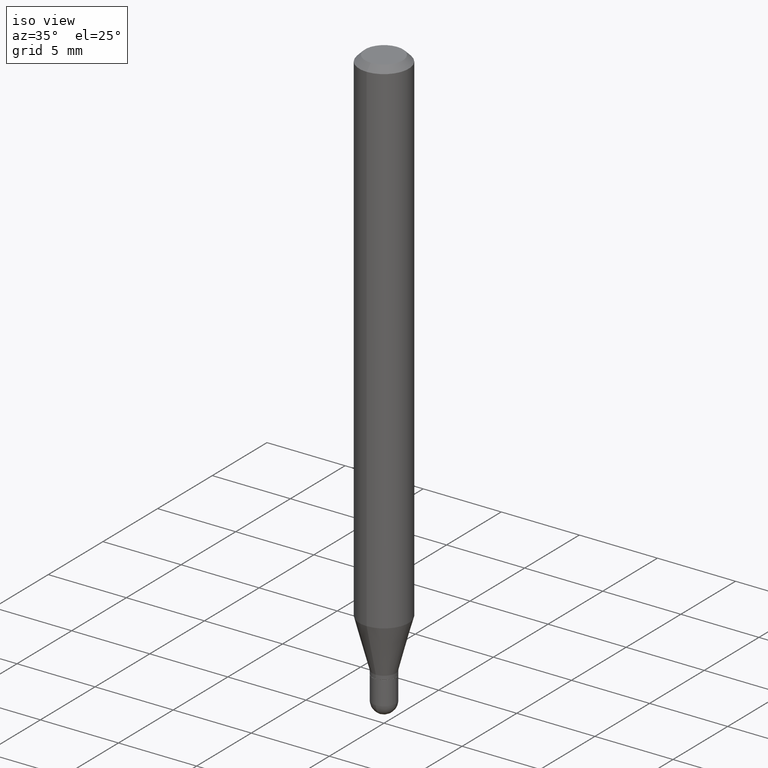
[diagram: clean part render]
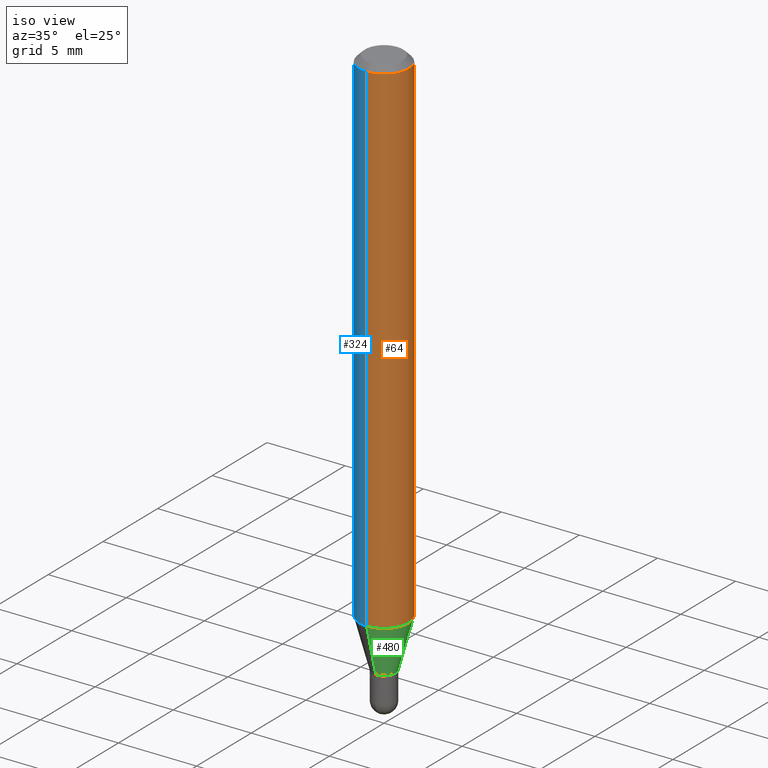
[diagram: same view with three faces highlighted in distinct colors, each labeled with its STEP entity id]
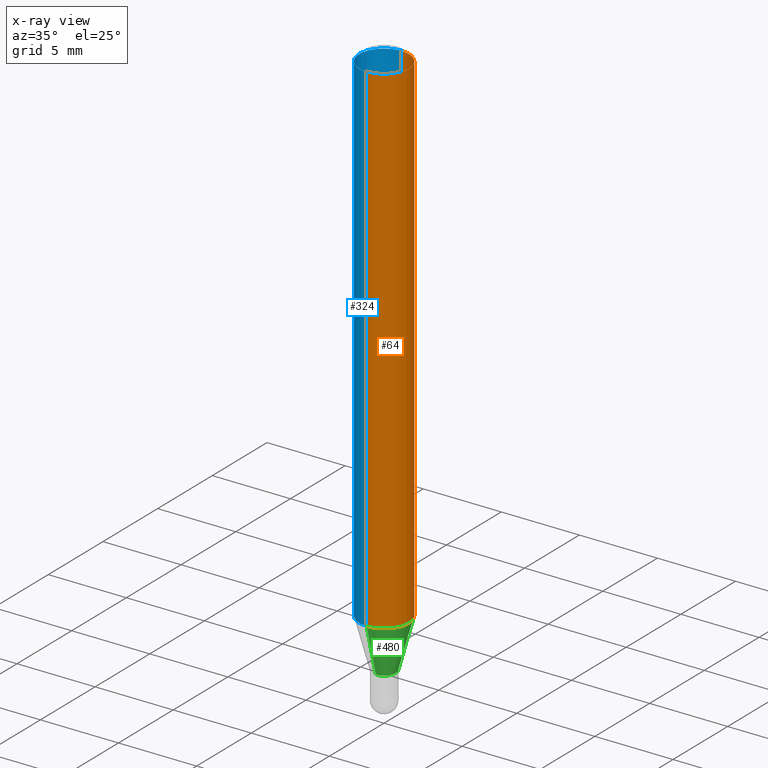
[diagram: x-ray of the same camera — body ghosted, the three highlighted faces saturated]
A machine part, iso view with three faces highlighted in distinct colors.
The next image is the same camera in x-ray (body ghosted, the three faces saturated) — at least one of them is partly hidden behind the body in this view.
Their STEP definitions:

[orange] entity #64 — the highlighted cylindrical surface (edge-blend (fillet) strip) has radius 1.5875 mm, axis along (-0, 0, 1).
#11 = LINE ( 'NONE', #56, #433 ) ;
#13 = ORIENTED_EDGE ( 'NONE', *, *, #98, .T. ) ;
#18 = AXIS2_PLACEMENT_3D ( 'NONE', #431, #319, #236 ) ;
#43 = DIRECTION ( 'NONE',  ( -2.445481567641216773E-29, 3.491463063711701769E-15, 1.000000000000000000 ) ) ;
#48 = CARTESIAN_POINT ( 'NONE',  ( 4.440892098500940720E-16, 0.06249999999999995143, -0.01500000000000054588 ) ) ;
#56 = CARTESIAN_POINT ( 'NONE',  ( -4.364351673553916201E-16, -0.06250000000000000000, 2.182164414819813606E-16 ) ) ;
#64 = ADVANCED_FACE ( 'NONE', ( #157 ), #435, .T. ) ;
#77 = DIRECTION ( 'NONE',  ( -6.982962677686265922E-15, -1.000000000000000000, 4.370956789862821150E-15 ) ) ;
#98 = EDGE_CURVE ( 'NONE', #479, #471, #161, .T. ) ;
#103 = DIRECTION ( 'NONE',  ( -2.445481567641216773E-29, 3.491463063711701769E-15, 1.000000000000000000 ) ) ;
#110 = ORIENTED_EDGE ( 'NONE', *, *, #285, .T. ) ;
#123 = CARTESIAN_POINT ( 'NONE',  ( -4.364351673553605587E-16, -0.06250000000000449640, -1.277842323350228293 ) ) ;
#137 = DIRECTION ( 'NONE',  ( -6.982962677686265922E-15, -1.000000000000000000, 3.483106191921935554E-15 ) ) ;
#144 = CARTESIAN_POINT ( 'NONE',  ( -4.364351673553912750E-16, -0.06250000000000005551, -0.01500000000000011047 ) ) ;
#146 = CIRCLE ( 'NONE', #418, 0.06250000000000000000 ) ;
#157 = FACE_OUTER_BOUND ( 'NONE', #185, .T. ) ;
#161 = CIRCLE ( 'NONE', #371, 0.06250000000000000000 ) ;
#169 = VECTOR ( 'NONE', #103, 39.37007874015748143 ) ;
#178 = EDGE_CURVE ( 'NONE', #453, #502, #146, .T. ) ;
#185 = EDGE_LOOP ( 'NONE', ( #13, #110, #341, #421 ) ) ;
#200 = EDGE_CURVE ( 'NONE', #479, #453, #11, .T. ) ;
#214 = CARTESIAN_POINT ( 'NONE',  ( 3.668222351461905752E-31, -5.237194595567666989E-17, -0.01500000000000032904 ) ) ;
#236 = DIRECTION ( 'NONE',  ( -6.982962677686265922E-15, -1.000000000000000000, 3.491463063711701769E-15 ) ) ;
#285 = EDGE_CURVE ( 'NONE', #471, #502, #447, .T. ) ;
#319 = DIRECTION ( 'NONE',  ( -2.445481567641216773E-29, 3.491463063711701769E-15, 1.000000000000000000 ) ) ;
#341 = ORIENTED_EDGE ( 'NONE', *, *, #178, .F. ) ;
#371 = AXIS2_PLACEMENT_3D ( 'NONE', #510, #43, #77 ) ;
#404 = CARTESIAN_POINT ( 'NONE',  ( 4.440892098500935790E-16, 0.06249999999999550360, -1.277842323350228737 ) ) ;
#418 = AXIS2_PLACEMENT_3D ( 'NONE', #214, #492, #137 ) ;
#420 = DIRECTION ( 'NONE',  ( -2.445481567641216773E-29, 3.491463063711701769E-15, 1.000000000000000000 ) ) ;
#421 = ORIENTED_EDGE ( 'NONE', *, *, #200, .F. ) ;
#431 = CARTESIAN_POINT ( 'NONE',  ( 0.000000000000000000, 0.000000000000000000, 0.000000000000000000 ) ) ;
#433 = VECTOR ( 'NONE', #420, 39.37007874015748143 ) ;
#435 = CYLINDRICAL_SURFACE ( 'NONE', #18, 0.06250000000000000000 ) ;
#447 = LINE ( 'NONE', #495, #169 ) ;
#453 = VERTEX_POINT ( 'NONE', #144 ) ;
#471 = VERTEX_POINT ( 'NONE', #404 ) ;
#479 = VERTEX_POINT ( 'NONE', #123 ) ;
#492 = DIRECTION ( 'NONE',  ( -2.445481567641216773E-29, 3.491463063711701769E-15, 1.000000000000000000 ) ) ;
#495 = CARTESIAN_POINT ( 'NONE',  ( 4.440892098500625669E-16, 0.06250000000000000000, -2.182164414819813606E-16 ) ) ;
#502 = VERTEX_POINT ( 'NONE', #48 ) ;
#510 = CARTESIAN_POINT ( 'NONE',  ( 3.124939848104811394E-29, -4.461539273224868558E-15, -1.277842323350228515 ) ) ;

[blue] entity #324 — the highlighted cylindrical surface (edge-blend (fillet) strip) has radius 1.5875 mm, axis along (-0, 0, 1).
#11 = LINE ( 'NONE', #56, #433 ) ;
#37 = FACE_OUTER_BOUND ( 'NONE', #491, .T. ) ;
#41 = CARTESIAN_POINT ( 'NONE',  ( 3.668222351461905752E-31, -5.237194595567666989E-17, -0.01500000000000032904 ) ) ;
#44 = CIRCLE ( 'NONE', #440, 0.06250000000000000000 ) ;
#48 = CARTESIAN_POINT ( 'NONE',  ( 4.440892098500940720E-16, 0.06249999999999995143, -0.01500000000000054588 ) ) ;
#56 = CARTESIAN_POINT ( 'NONE',  ( -4.364351673553916201E-16, -0.06250000000000000000, 2.182164414819813606E-16 ) ) ;
#71 = EDGE_CURVE ( 'NONE', #502, #453, #339, .T. ) ;
#72 = CYLINDRICAL_SURFACE ( 'NONE', #99, 0.06250000000000000000 ) ;
#99 = AXIS2_PLACEMENT_3D ( 'NONE', #189, #460, #228 ) ;
#103 = DIRECTION ( 'NONE',  ( -2.445481567641216773E-29, 3.491463063711701769E-15, 1.000000000000000000 ) ) ;
#123 = CARTESIAN_POINT ( 'NONE',  ( -4.364351673553605587E-16, -0.06250000000000449640, -1.277842323350228293 ) ) ;
#144 = CARTESIAN_POINT ( 'NONE',  ( -4.364351673553912750E-16, -0.06250000000000005551, -0.01500000000000011047 ) ) ;
#169 = VECTOR ( 'NONE', #103, 39.37007874015748143 ) ;
#189 = CARTESIAN_POINT ( 'NONE',  ( 0.000000000000000000, 0.000000000000000000, 0.000000000000000000 ) ) ;
#200 = EDGE_CURVE ( 'NONE', #479, #453, #11, .T. ) ;
#228 = DIRECTION ( 'NONE',  ( -6.982962677686265922E-15, -1.000000000000000000, 3.491463063711701769E-15 ) ) ;
#277 = AXIS2_PLACEMENT_3D ( 'NONE', #41, #317, #464 ) ;
#285 = EDGE_CURVE ( 'NONE', #471, #502, #447, .T. ) ;
#298 = EDGE_CURVE ( 'NONE', #471, #479, #44, .T. ) ;
#300 = DIRECTION ( 'NONE',  ( -2.445481567641216773E-29, 3.491463063711701769E-15, 1.000000000000000000 ) ) ;
#302 = ORIENTED_EDGE ( 'NONE', *, *, #285, .F. ) ;
#317 = DIRECTION ( 'NONE',  ( -2.445481567641216773E-29, 3.491463063711701769E-15, 1.000000000000000000 ) ) ;
#324 = ADVANCED_FACE ( 'NONE', ( #37 ), #72, .T. ) ;
#336 = ORIENTED_EDGE ( 'NONE', *, *, #298, .T. ) ;
#339 = CIRCLE ( 'NONE', #277, 0.06250000000000000000 ) ;
#344 = ORIENTED_EDGE ( 'NONE', *, *, #71, .F. ) ;
#396 = CARTESIAN_POINT ( 'NONE',  ( 3.124939848104811394E-29, -4.461539273224868558E-15, -1.277842323350228515 ) ) ;
#404 = CARTESIAN_POINT ( 'NONE',  ( 4.440892098500935790E-16, 0.06249999999999550360, -1.277842323350228737 ) ) ;
#420 = DIRECTION ( 'NONE',  ( -2.445481567641216773E-29, 3.491463063711701769E-15, 1.000000000000000000 ) ) ;
#433 = VECTOR ( 'NONE', #420, 39.37007874015748143 ) ;
#440 = AXIS2_PLACEMENT_3D ( 'NONE', #396, #300, #463 ) ;
#447 = LINE ( 'NONE', #495, #169 ) ;
#453 = VERTEX_POINT ( 'NONE', #144 ) ;
#460 = DIRECTION ( 'NONE',  ( -2.445481567641216773E-29, 3.491463063711701769E-15, 1.000000000000000000 ) ) ;
#461 = ORIENTED_EDGE ( 'NONE', *, *, #200, .T. ) ;
#463 = DIRECTION ( 'NONE',  ( -6.982962677686265922E-15, -1.000000000000000000, 4.370956789862821150E-15 ) ) ;
#464 = DIRECTION ( 'NONE',  ( -6.982962677686265922E-15, -1.000000000000000000, 3.483106191921935554E-15 ) ) ;
#471 = VERTEX_POINT ( 'NONE', #404 ) ;
#479 = VERTEX_POINT ( 'NONE', #123 ) ;
#491 = EDGE_LOOP ( 'NONE', ( #302, #336, #461, #344 ) ) ;
#495 = CARTESIAN_POINT ( 'NONE',  ( 4.440892098500625669E-16, 0.06250000000000000000, -2.182164414819813606E-16 ) ) ;
#502 = VERTEX_POINT ( 'NONE', #48 ) ;

[green] entity #480 — the highlighted conical surface has half-angle 15 deg.
#10 = DIRECTION ( 'NONE',  ( -2.445481567641216773E-29, 3.491463063711701769E-15, 1.000000000000000000 ) ) ;
#27 = EDGE_CURVE ( 'NONE', #292, #479, #399, .T. ) ;
#43 = DIRECTION ( 'NONE',  ( -2.445481567641216773E-29, 3.491463063711701769E-15, 1.000000000000000000 ) ) ;
#47 = EDGE_CURVE ( 'NONE', #422, #471, #397, .T. ) ;
#58 = AXIS2_PLACEMENT_3D ( 'NONE', #61, #366, #290 ) ;
#61 = CARTESIAN_POINT ( 'NONE',  ( 3.426119676265345091E-29, -4.891539752260095021E-15, -1.401000000000000245 ) ) ;
#65 = ORIENTED_EDGE ( 'NONE', *, *, #47, .T. ) ;
#77 = DIRECTION ( 'NONE',  ( -6.982962677686265922E-15, -1.000000000000000000, 4.370956789862821150E-15 ) ) ;
#89 = CARTESIAN_POINT ( 'NONE',  ( 3.426119676265345091E-29, -4.891539752260095021E-15, -1.401000000000000245 ) ) ;
#95 = CARTESIAN_POINT ( 'NONE',  ( -2.059973989917119804E-16, -0.02950000000000509159, -1.401000000000000245 ) ) ;
#98 = EDGE_CURVE ( 'NONE', #479, #471, #161, .T. ) ;
#115 = ORIENTED_EDGE ( 'NONE', *, *, #98, .F. ) ;
#123 = CARTESIAN_POINT ( 'NONE',  ( -4.364351673553605587E-16, -0.06250000000000449640, -1.277842323350228293 ) ) ;
#154 = DIRECTION ( 'NONE',  ( -1.807323732225332111E-15, -0.2588190451025184635, 0.9659258262890689783 ) ) ;
#158 = CARTESIAN_POINT ( 'NONE',  ( 2.096101070492652151E-16, 0.02949999999999530775, -1.401000000000000245 ) ) ;
#161 = CIRCLE ( 'NONE', #371, 0.06250000000000000000 ) ;
#168 = CIRCLE ( 'NONE', #58, 0.02950000000000019967 ) ;
#213 = AXIS2_PLACEMENT_3D ( 'NONE', #89, #10, #472 ) ;
#243 = EDGE_CURVE ( 'NONE', #292, #422, #168, .T. ) ;
#290 = DIRECTION ( 'NONE',  ( -6.982962677686265922E-15, -1.000000000000000000, 0.000000000000000000 ) ) ;
#292 = VERTEX_POINT ( 'NONE', #95 ) ;
#303 = ORIENTED_EDGE ( 'NONE', *, *, #27, .F. ) ;
#306 = CONICAL_SURFACE ( 'NONE', #213, 0.02950000000000019967, 0.2617993877991505736 ) ;
#321 = FACE_OUTER_BOUND ( 'NONE', #458, .T. ) ;
#342 = ORIENTED_EDGE ( 'NONE', *, *, #243, .T. ) ;
#346 = VECTOR ( 'NONE', #353, 39.37007874015748143 ) ;
#351 = CARTESIAN_POINT ( 'NONE',  ( -2.059973989917119804E-16, -0.02950000000000509159, -1.401000000000000245 ) ) ;
#353 = DIRECTION ( 'NONE',  ( 1.839019923739602287E-15, 0.2588190451025252359, 0.9659258262890670910 ) ) ;
#366 = DIRECTION ( 'NONE',  ( -2.445481567641216773E-29, 3.491463063711701769E-15, 1.000000000000000000 ) ) ;
#371 = AXIS2_PLACEMENT_3D ( 'NONE', #510, #43, #77 ) ;
#383 = VECTOR ( 'NONE', #154, 39.37007874015748854 ) ;
#397 = LINE ( 'NONE', #158, #346 ) ;
#399 = LINE ( 'NONE', #351, #383 ) ;
#404 = CARTESIAN_POINT ( 'NONE',  ( 4.440892098500935790E-16, 0.06249999999999550360, -1.277842323350228737 ) ) ;
#422 = VERTEX_POINT ( 'NONE', #466 ) ;
#458 = EDGE_LOOP ( 'NONE', ( #342, #65, #115, #303 ) ) ;
#466 = CARTESIAN_POINT ( 'NONE',  ( 3.268496584496795573E-16, 0.02949999999999530775, -1.401000000000000245 ) ) ;
#471 = VERTEX_POINT ( 'NONE', #404 ) ;
#472 = DIRECTION ( 'NONE',  ( -6.982962677686265922E-15, -1.000000000000000000, 0.000000000000000000 ) ) ;
#479 = VERTEX_POINT ( 'NONE', #123 ) ;
#480 = ADVANCED_FACE ( 'NONE', ( #321 ), #306, .T. ) ;
#510 = CARTESIAN_POINT ( 'NONE',  ( 3.124939848104811394E-29, -4.461539273224868558E-15, -1.277842323350228515 ) ) ;